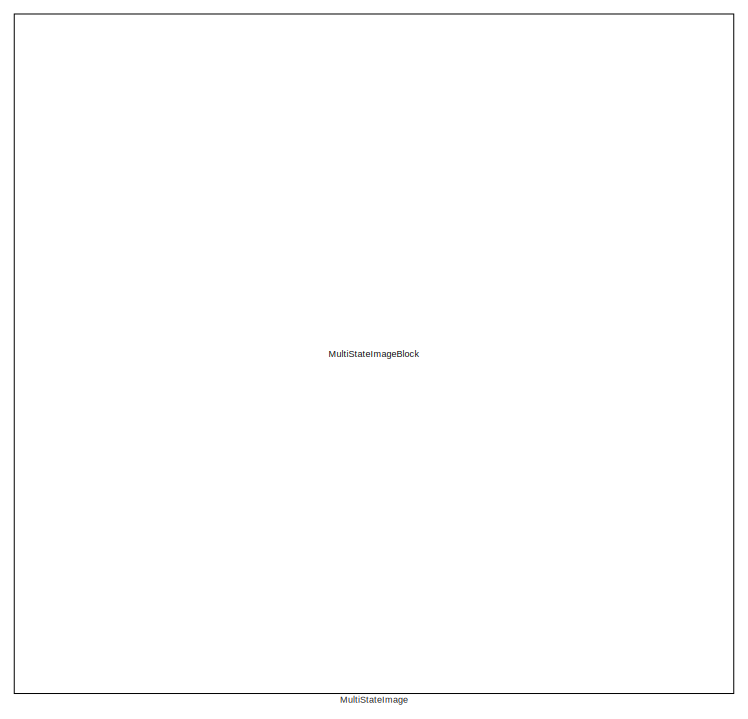
[diagram: root canvas - part 1/10, top center region]
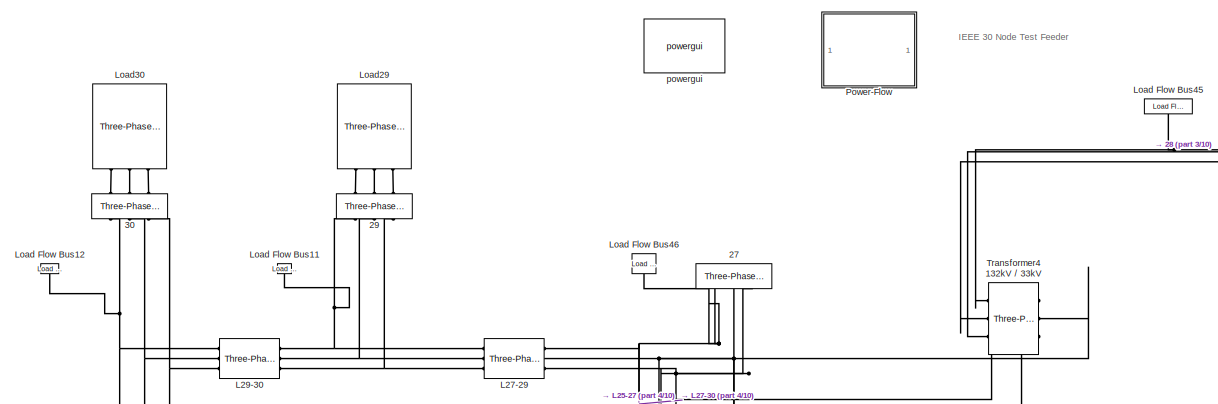
[diagram: root canvas - part 2/10, top center region]
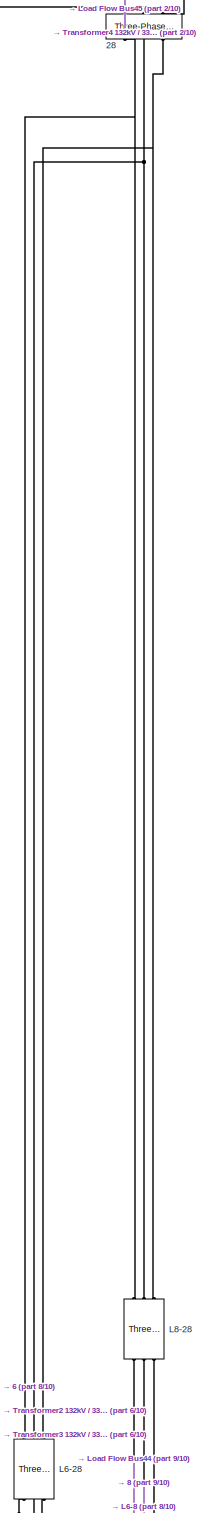
[diagram: root canvas - part 3/10, middle right region]
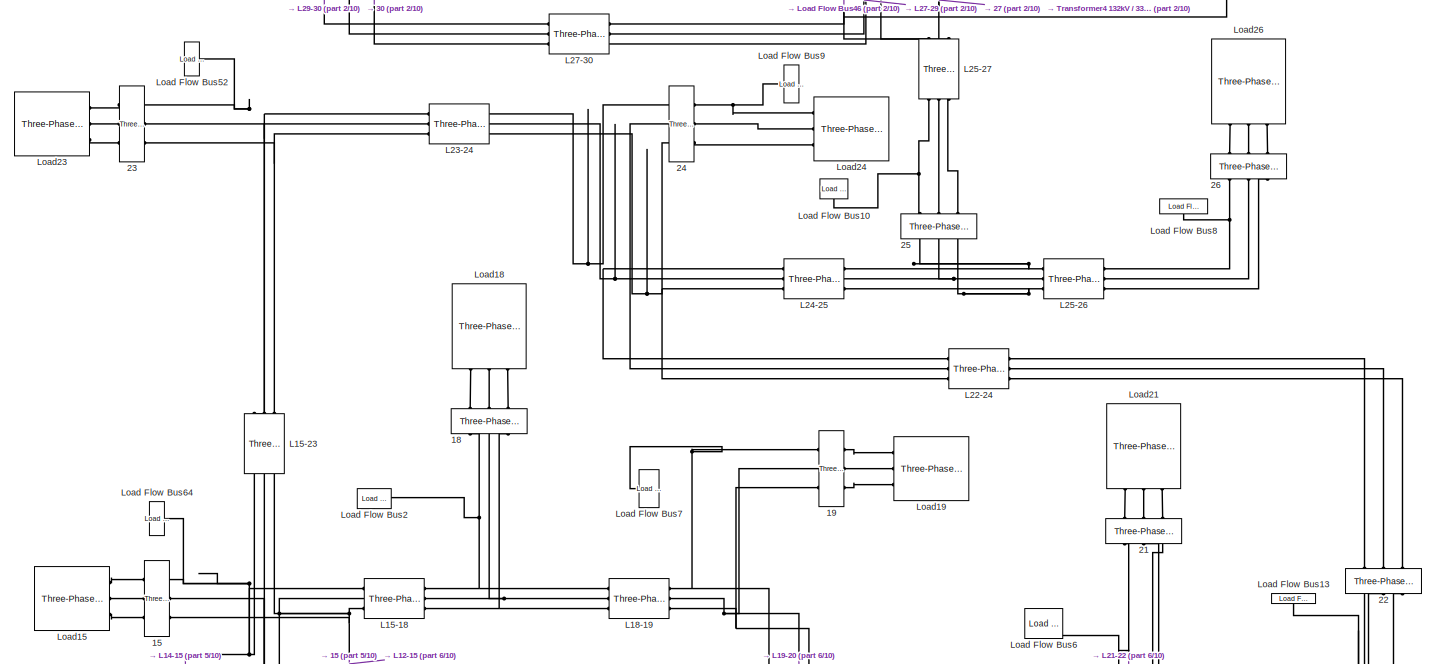
[diagram: root canvas - part 4/10, central region]
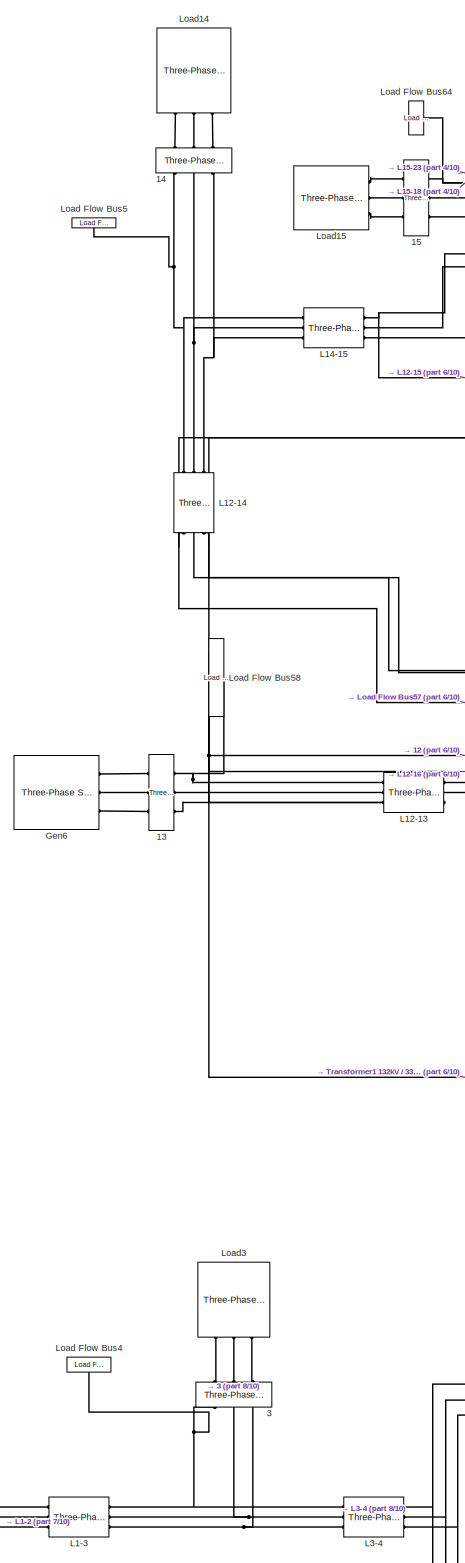
[diagram: root canvas - part 5/10, middle left region]
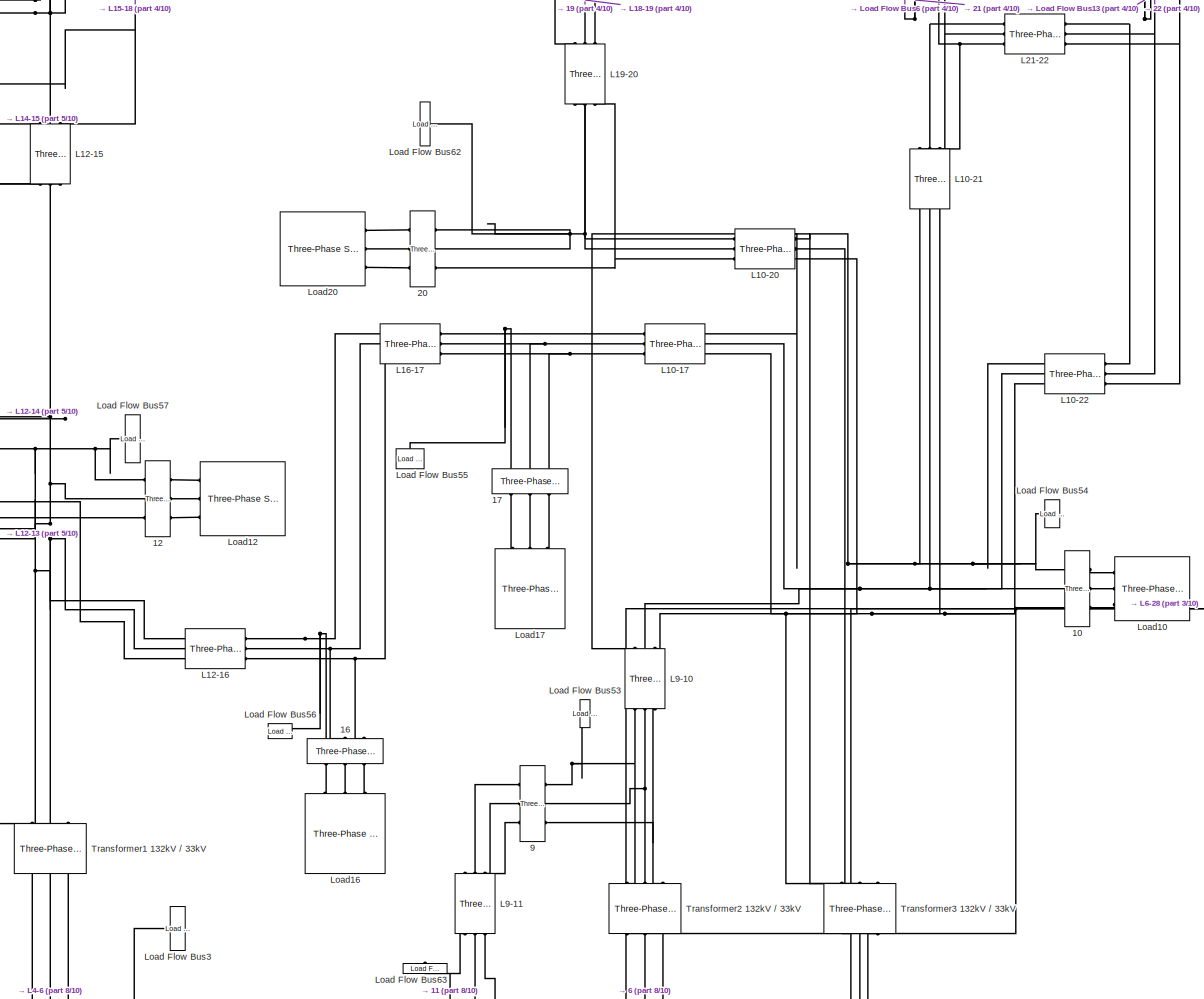
[diagram: root canvas - part 6/10, central region]
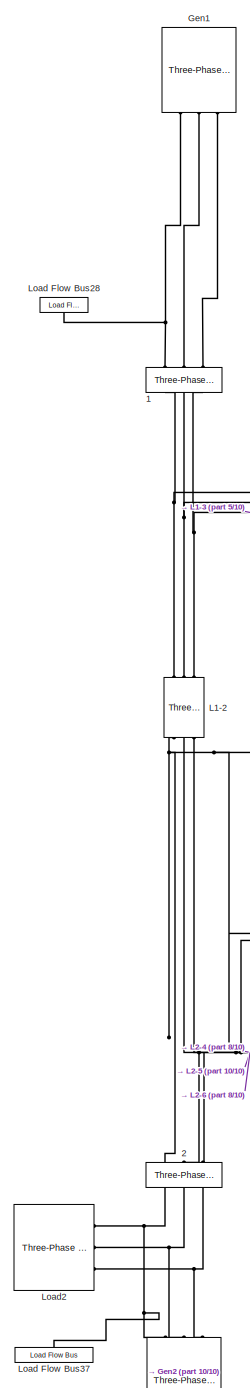
[diagram: root canvas - part 7/10, bottom left region]
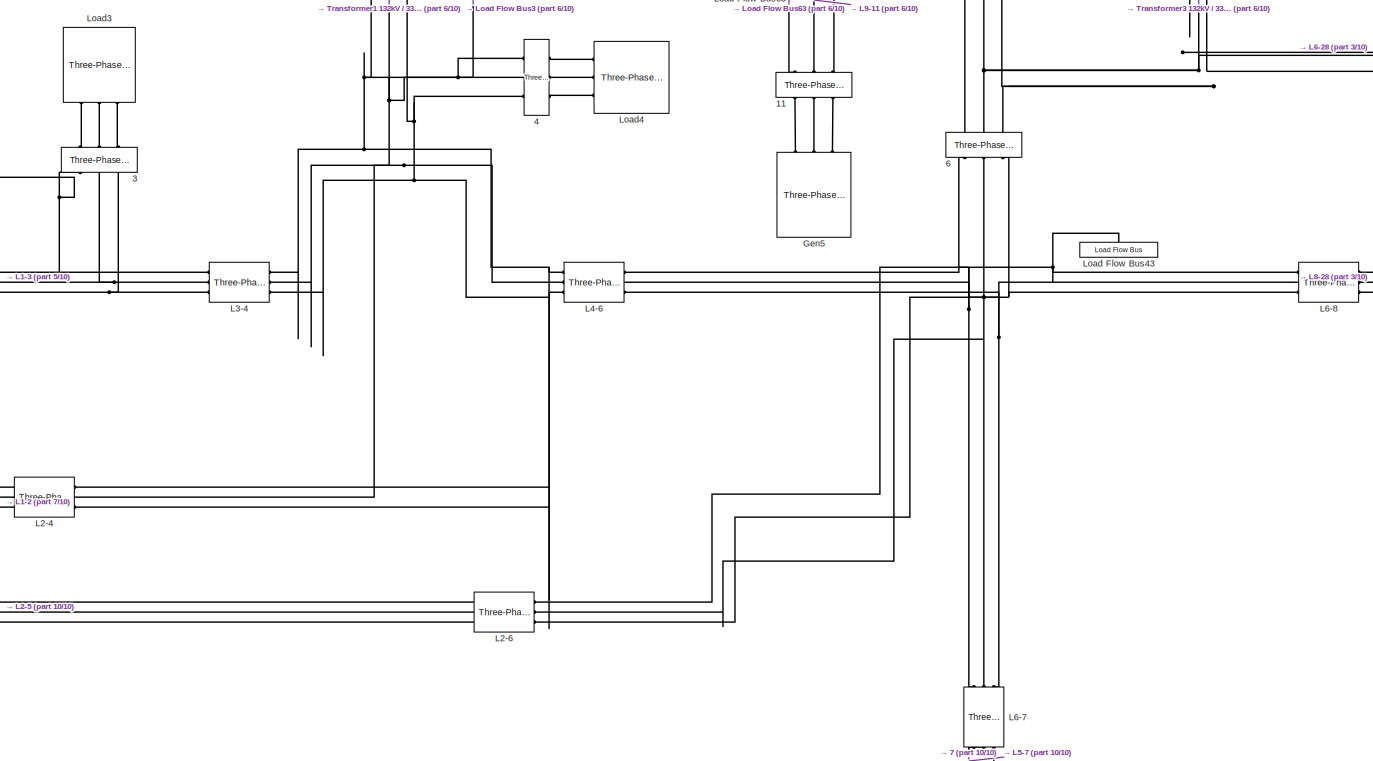
[diagram: root canvas - part 8/10, bottom center region]
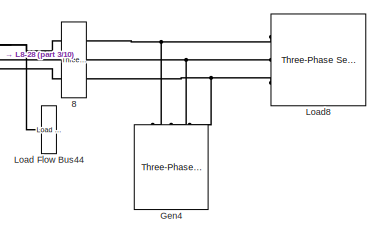
[diagram: root canvas - part 9/10, bottom right region]
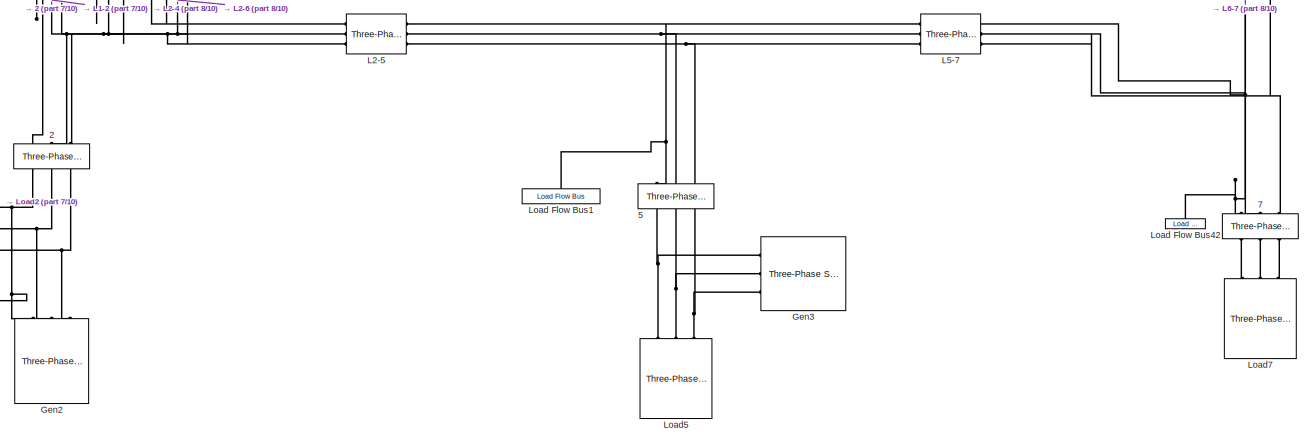
[diagram: root canvas - part 10/10, bottom left region]
MODEL slx_54e22e203c2f
KIND model
CONFIG AbsTol = auto
CONFIG EnableMultiTasking = off
CONFIG FixedStep = 50e-6
CONFIG MaxStep = auto
CONFIG MinStep = auto
CONFIG RelTol = 1e-3
CONFIG SampleTimeConstraint = Unconstrained
CONFIG SolverName = FixedStepDiscrete
CONFIG StartTime = 0.0
CONFIG StopTime = 0.5
BLOCK [Reference] 1  REF=spsThreePhaseVIMeasurementLib/Three-Phase
V-I Measurement
  NameLocation = right
  Ports = [0, 0, 0, 0, 0, 3, 3]
  SourceBlock = spsThreePhaseVIMeasurementLib/Three-Phase\nV-I Measurement
  SourceProductBaseCode = PS
  SourceType = Three-Phase VI Measurement
BLOCK [Reference] 10  REF=spsThreePhaseVIMeasurementLib/Three-Phase
V-I Measurement
  NameLocation = top
  Ports = [0, 0, 0, 0, 0, 3, 3]
  SourceBlock = spsThreePhaseVIMeasurementLib/Three-Phase\nV-I Measurement
  SourceProductBaseCode = PS
  SourceType = Three-Phase VI Measurement
BLOCK [Reference] 11  REF=spsThreePhaseVIMeasurementLib/Three-Phase
V-I Measurement
  NameLocation = left
  Ports = [0, 0, 0, 0, 0, 3, 3]
  SourceBlock = spsThreePhaseVIMeasurementLib/Three-Phase\nV-I Measurement
  SourceProductBaseCode = PS
  SourceType = Three-Phase VI Measurement
BLOCK [Reference] 12  REF=spsThreePhaseVIMeasurementLib/Three-Phase
V-I Measurement
  NameLocation = top
  Ports = [0, 0, 0, 0, 0, 3, 3]
  SourceBlock = spsThreePhaseVIMeasurementLib/Three-Phase\nV-I Measurement
  SourceProductBaseCode = PS
  SourceType = Three-Phase VI Measurement
BLOCK [Reference] 13  REF=spsThreePhaseVIMeasurementLib/Three-Phase
V-I Measurement
  NameLocation = top
  Ports = [0, 0, 0, 0, 0, 3, 3]
  SourceBlock = spsThreePhaseVIMeasurementLib/Three-Phase\nV-I Measurement
  SourceProductBaseCode = PS
  SourceType = Three-Phase VI Measurement
BLOCK [Reference] 14  REF=spsThreePhaseVIMeasurementLib/Three-Phase
V-I Measurement
  NameLocation = left
  Ports = [0, 0, 0, 0, 0, 3, 3]
  SourceBlock = spsThreePhaseVIMeasurementLib/Three-Phase\nV-I Measurement
  SourceProductBaseCode = PS
  SourceType = Three-Phase VI Measurement
BLOCK [Reference] 15  REF=spsThreePhaseVIMeasurementLib/Three-Phase
V-I Measurement
  NameLocation = top
  Ports = [0, 0, 0, 0, 0, 3, 3]
  SourceBlock = spsThreePhaseVIMeasurementLib/Three-Phase\nV-I Measurement
  SourceProductBaseCode = PS
  SourceType = Three-Phase VI Measurement
BLOCK [Reference] 16  REF=spsThreePhaseVIMeasurementLib/Three-Phase
V-I Measurement
  NameLocation = left
  Ports = [0, 0, 0, 0, 0, 3, 3]
  SourceBlock = spsThreePhaseVIMeasurementLib/Three-Phase\nV-I Measurement
  SourceProductBaseCode = PS
  SourceType = Three-Phase VI Measurement
BLOCK [Reference] 17  REF=spsThreePhaseVIMeasurementLib/Three-Phase
V-I Measurement
  NameLocation = left
  Ports = [0, 0, 0, 0, 0, 3, 3]
  SourceBlock = spsThreePhaseVIMeasurementLib/Three-Phase\nV-I Measurement
  SourceProductBaseCode = PS
  SourceType = Three-Phase VI Measurement
BLOCK [Reference] 18  REF=spsThreePhaseVIMeasurementLib/Three-Phase
V-I Measurement
  NameLocation = left
  Ports = [0, 0, 0, 0, 0, 3, 3]
  SourceBlock = spsThreePhaseVIMeasurementLib/Three-Phase\nV-I Measurement
  SourceProductBaseCode = PS
  SourceType = Three-Phase VI Measurement
BLOCK [Reference] 19  REF=spsThreePhaseVIMeasurementLib/Three-Phase
V-I Measurement
  NameLocation = top
  Ports = [0, 0, 0, 0, 0, 3, 3]
  SourceBlock = spsThreePhaseVIMeasurementLib/Three-Phase\nV-I Measurement
  SourceProductBaseCode = PS
  SourceType = Three-Phase VI Measurement
BLOCK [Reference] 2  REF=spsThreePhaseVIMeasurementLib/Three-Phase
V-I Measurement
  NameLocation = left
  Ports = [0, 0, 0, 0, 0, 3, 3]
  SourceBlock = spsThreePhaseVIMeasurementLib/Three-Phase\nV-I Measurement
  SourceProductBaseCode = PS
  SourceType = Three-Phase VI Measurement
BLOCK [Reference] 20  REF=spsThreePhaseVIMeasurementLib/Three-Phase
V-I Measurement
  NameLocation = top
  Ports = [0, 0, 0, 0, 0, 3, 3]
  SourceBlock = spsThreePhaseVIMeasurementLib/Three-Phase\nV-I Measurement
  SourceProductBaseCode = PS
  SourceType = Three-Phase VI Measurement
BLOCK [Reference] 21  REF=spsThreePhaseVIMeasurementLib/Three-Phase
V-I Measurement
  NameLocation = left
  Ports = [0, 0, 0, 0, 0, 3, 3]
  SourceBlock = spsThreePhaseVIMeasurementLib/Three-Phase\nV-I Measurement
  SourceProductBaseCode = PS
  SourceType = Three-Phase VI Measurement
BLOCK [Reference] 22  REF=spsThreePhaseVIMeasurementLib/Three-Phase
V-I Measurement
  NameLocation = left
  Ports = [0, 0, 0, 0, 0, 3, 3]
  SourceBlock = spsThreePhaseVIMeasurementLib/Three-Phase\nV-I Measurement
  SourceProductBaseCode = PS
  SourceType = Three-Phase VI Measurement
BLOCK [Reference] 23  REF=spsThreePhaseVIMeasurementLib/Three-Phase
V-I Measurement
  NameLocation = top
  Ports = [0, 0, 0, 0, 0, 3, 3]
  SourceBlock = spsThreePhaseVIMeasurementLib/Three-Phase\nV-I Measurement
  SourceProductBaseCode = PS
  SourceType = Three-Phase VI Measurement
BLOCK [Reference] 24  REF=spsThreePhaseVIMeasurementLib/Three-Phase
V-I Measurement
  NameLocation = top
  Ports = [0, 0, 0, 0, 0, 3, 3]
  SourceBlock = spsThreePhaseVIMeasurementLib/Three-Phase\nV-I Measurement
  SourceProductBaseCode = PS
  SourceType = Three-Phase VI Measurement
BLOCK [Reference] 25  REF=spsThreePhaseVIMeasurementLib/Three-Phase
V-I Measurement
  NameLocation = left
  Ports = [0, 0, 0, 0, 0, 3, 3]
  SourceBlock = spsThreePhaseVIMeasurementLib/Three-Phase\nV-I Measurement
  SourceProductBaseCode = PS
  SourceType = Three-Phase VI Measurement
BLOCK [Reference] 26  REF=spsThreePhaseVIMeasurementLib/Three-Phase
V-I Measurement
  NameLocation = left
  Ports = [0, 0, 0, 0, 0, 3, 3]
  SourceBlock = spsThreePhaseVIMeasurementLib/Three-Phase\nV-I Measurement
  SourceProductBaseCode = PS
  SourceType = Three-Phase VI Measurement
BLOCK [Reference] 27  REF=spsThreePhaseVIMeasurementLib/Three-Phase
V-I Measurement
  NameLocation = left
  Ports = [0, 0, 0, 0, 0, 3, 3]
  SourceBlock = spsThreePhaseVIMeasurementLib/Three-Phase\nV-I Measurement
  SourceProductBaseCode = PS
  SourceType = Three-Phase VI Measurement
BLOCK [Reference] 28  REF=spsThreePhaseVIMeasurementLib/Three-Phase
V-I Measurement
  NameLocation = left
  Ports = [0, 0, 0, 0, 0, 3, 3]
  SourceBlock = spsThreePhaseVIMeasurementLib/Three-Phase\nV-I Measurement
  SourceProductBaseCode = PS
  SourceType = Three-Phase VI Measurement
BLOCK [Reference] 29  REF=spsThreePhaseVIMeasurementLib/Three-Phase
V-I Measurement
  NameLocation = left
  Ports = [0, 0, 0, 0, 0, 3, 3]
  SourceBlock = spsThreePhaseVIMeasurementLib/Three-Phase\nV-I Measurement
  SourceProductBaseCode = PS
  SourceType = Three-Phase VI Measurement
BLOCK [Reference] 3  REF=spsThreePhaseVIMeasurementLib/Three-Phase
V-I Measurement
  NameLocation = left
  Ports = [0, 0, 0, 0, 0, 3, 3]
  SourceBlock = spsThreePhaseVIMeasurementLib/Three-Phase\nV-I Measurement
  SourceProductBaseCode = PS
  SourceType = Three-Phase VI Measurement
BLOCK [Reference] 30  REF=spsThreePhaseVIMeasurementLib/Three-Phase
V-I Measurement
  NameLocation = left
  Ports = [0, 0, 0, 0, 0, 3, 3]
  SourceBlock = spsThreePhaseVIMeasurementLib/Three-Phase\nV-I Measurement
  SourceProductBaseCode = PS
  SourceType = Three-Phase VI Measurement
BLOCK [Reference] 4  REF=spsThreePhaseVIMeasurementLib/Three-Phase
V-I Measurement
  NameLocation = top
  Ports = [0, 0, 0, 0, 0, 3, 3]
  SourceBlock = spsThreePhaseVIMeasurementLib/Three-Phase\nV-I Measurement
  SourceProductBaseCode = PS
  SourceType = Three-Phase VI Measurement
BLOCK [Reference] 5  REF=spsThreePhaseVIMeasurementLib/Three-Phase
V-I Measurement
  NameLocation = left
  Ports = [0, 0, 0, 0, 0, 3, 3]
  SourceBlock = spsThreePhaseVIMeasurementLib/Three-Phase\nV-I Measurement
  SourceProductBaseCode = PS
  SourceType = Three-Phase VI Measurement
BLOCK [Reference] 6  REF=spsThreePhaseVIMeasurementLib/Three-Phase
V-I Measurement
  NameLocation = left
  Ports = [0, 0, 0, 0, 0, 3, 3]
  SourceBlock = spsThreePhaseVIMeasurementLib/Three-Phase\nV-I Measurement
  SourceProductBaseCode = PS
  SourceType = Three-Phase VI Measurement
BLOCK [Reference] 7  REF=spsThreePhaseVIMeasurementLib/Three-Phase
V-I Measurement
  NameLocation = left
  Ports = [0, 0, 0, 0, 0, 3, 3]
  SourceBlock = spsThreePhaseVIMeasurementLib/Three-Phase\nV-I Measurement
  SourceProductBaseCode = PS
  SourceType = Three-Phase VI Measurement
BLOCK [Reference] 8  REF=spsThreePhaseVIMeasurementLib/Three-Phase
V-I Measurement
  NameLocation = top
  Ports = [0, 0, 0, 0, 0, 3, 3]
  SourceBlock = spsThreePhaseVIMeasurementLib/Three-Phase\nV-I Measurement
  SourceProductBaseCode = PS
  SourceType = Three-Phase VI Measurement
BLOCK [Reference] 9  REF=spsThreePhaseVIMeasurementLib/Three-Phase
V-I Measurement
  NameLocation = top
  Ports = [0, 0, 0, 0, 0, 3, 3]
  SourceBlock = spsThreePhaseVIMeasurementLib/Three-Phase\nV-I Measurement
  SourceProductBaseCode = PS
  SourceType = Three-Phase VI Measurement
BLOCK [Reference] Gen1  REF=spsThreePhaseSourceLib/Three-Phase Source
  NameLocation = left
  Ports = [0, 0, 0, 0, 0, 0, 3]
  SourceBlock = spsThreePhaseSourceLib/Three-Phase Source
  SourceProductBaseCode = PS
  SourceType = Three-Phase Source
BLOCK [Reference] Gen2  REF=spsThreePhaseSourceLib/Three-Phase Source
  NameLocation = right
  Ports = [0, 0, 0, 0, 0, 0, 3]
  SourceBlock = spsThreePhaseSourceLib/Three-Phase Source
  SourceProductBaseCode = PS
  SourceType = Three-Phase Source
BLOCK [Reference] Gen3  REF=spsThreePhaseSourceLib/Three-Phase Source
  NameLocation = top
  Ports = [0, 0, 0, 0, 0, 0, 3]
  SourceBlock = spsThreePhaseSourceLib/Three-Phase Source
  SourceProductBaseCode = PS
  SourceType = Three-Phase Source
BLOCK [Reference] Gen4  REF=spsThreePhaseSourceLib/Three-Phase Source
  NameLocation = right
  Ports = [0, 0, 0, 0, 0, 0, 3]
  SourceBlock = spsThreePhaseSourceLib/Three-Phase Source
  SourceProductBaseCode = PS
  SourceType = Three-Phase Source
BLOCK [Reference] Gen5  REF=spsThreePhaseSourceLib/Three-Phase Source
  NameLocation = right
  Ports = [0, 0, 0, 0, 0, 0, 3]
  SourceBlock = spsThreePhaseSourceLib/Three-Phase Source
  SourceProductBaseCode = PS
  SourceType = Three-Phase Source
BLOCK [Reference] Gen6  REF=spsThreePhaseSourceLib/Three-Phase Source
  Ports = [0, 0, 0, 0, 0, 0, 3]
  SourceBlock = spsThreePhaseSourceLib/Three-Phase Source
  SourceProductBaseCode = PS
  SourceType = Three-Phase Source
BLOCK [Reference] L1-2  REF=spsThreePhasePISectionLineLib/Three-Phase
PI Section Line
  AttributesFormatString = \n
  NameLocation = right
  Ports = [0, 0, 0, 0, 0, 3, 3]
  SourceBlock = spsThreePhasePISectionLineLib/Three-Phase\nPI Section Line
  SourceProductBaseCode = PS
  SourceType = Three-Phase PI Section Line
BLOCK [Reference] L1-3  REF=spsThreePhasePISectionLineLib/Three-Phase
PI Section Line
  AttributesFormatString = \n
  Ports = [0, 0, 0, 0, 0, 3, 3]
  SourceBlock = spsThreePhasePISectionLineLib/Three-Phase\nPI Section Line
  SourceProductBaseCode = PS
  SourceType = Three-Phase PI Section Line
BLOCK [Reference] L10-17  REF=spsThreePhasePISectionLineLib/Three-Phase
PI Section Line
  AttributesFormatString = \n
  Ports = [0, 0, 0, 0, 0, 3, 3]
  SourceBlock = spsThreePhasePISectionLineLib/Three-Phase\nPI Section Line
  SourceProductBaseCode = PS
  SourceType = Three-Phase PI Section Line
BLOCK [Reference] L10-20  REF=spsThreePhasePISectionLineLib/Three-Phase
PI Section Line
  AttributesFormatString = \n
  Ports = [0, 0, 0, 0, 0, 3, 3]
  SourceBlock = spsThreePhasePISectionLineLib/Three-Phase\nPI Section Line
  SourceProductBaseCode = PS
  SourceType = Three-Phase PI Section Line
BLOCK [Reference] L10-21  REF=spsThreePhasePISectionLineLib/Three-Phase
PI Section Line
  AttributesFormatString = \n
  NameLocation = right
  Ports = [0, 0, 0, 0, 0, 3, 3]
  SourceBlock = spsThreePhasePISectionLineLib/Three-Phase\nPI Section Line
  SourceProductBaseCode = PS
  SourceType = Three-Phase PI Section Line
BLOCK [Reference] L10-22  REF=spsThreePhasePISectionLineLib/Three-Phase
PI Section Line
  AttributesFormatString = \n
  Ports = [0, 0, 0, 0, 0, 3, 3]
  SourceBlock = spsThreePhasePISectionLineLib/Three-Phase\nPI Section Line
  SourceProductBaseCode = PS
  SourceType = Three-Phase PI Section Line
BLOCK [Reference] L12-13  REF=spsThreePhasePISectionLineLib/Three-Phase
PI Section Line
  AttributesFormatString = \n
  Ports = [0, 0, 0, 0, 0, 3, 3]
  SourceBlock = spsThreePhasePISectionLineLib/Three-Phase\nPI Section Line
  SourceProductBaseCode = PS
  SourceType = Three-Phase PI Section Line
BLOCK [Reference] L12-14  REF=spsThreePhasePISectionLineLib/Three-Phase
PI Section Line
  AttributesFormatString = \n
  NameLocation = right
  Ports = [0, 0, 0, 0, 0, 3, 3]
  SourceBlock = spsThreePhasePISectionLineLib/Three-Phase\nPI Section Line
  SourceProductBaseCode = PS
  SourceType = Three-Phase PI Section Line
BLOCK [Reference] L12-15  REF=spsThreePhasePISectionLineLib/Three-Phase
PI Section Line
  AttributesFormatString = \n
  NameLocation = right
  Ports = [0, 0, 0, 0, 0, 3, 3]
  SourceBlock = spsThreePhasePISectionLineLib/Three-Phase\nPI Section Line
  SourceProductBaseCode = PS
  SourceType = Three-Phase PI Section Line
BLOCK [Reference] L12-16  REF=spsThreePhasePISectionLineLib/Three-Phase
PI Section Line
  AttributesFormatString = \n
  Ports = [0, 0, 0, 0, 0, 3, 3]
  SourceBlock = spsThreePhasePISectionLineLib/Three-Phase\nPI Section Line
  SourceProductBaseCode = PS
  SourceType = Three-Phase PI Section Line
BLOCK [Reference] L14-15  REF=spsThreePhasePISectionLineLib/Three-Phase
PI Section Line
  AttributesFormatString = \n
  Ports = [0, 0, 0, 0, 0, 3, 3]
  SourceBlock = spsThreePhasePISectionLineLib/Three-Phase\nPI Section Line
  SourceProductBaseCode = PS
  SourceType = Three-Phase PI Section Line
BLOCK [Reference] L15-18  REF=spsThreePhasePISectionLineLib/Three-Phase
PI Section Line
  AttributesFormatString = \n
  Ports = [0, 0, 0, 0, 0, 3, 3]
  SourceBlock = spsThreePhasePISectionLineLib/Three-Phase\nPI Section Line
  SourceProductBaseCode = PS
  SourceType = Three-Phase PI Section Line
BLOCK [Reference] L15-23  REF=spsThreePhasePISectionLineLib/Three-Phase
PI Section Line
  AttributesFormatString = \n
  NameLocation = right
  Ports = [0, 0, 0, 0, 0, 3, 3]
  SourceBlock = spsThreePhasePISectionLineLib/Three-Phase\nPI Section Line
  SourceProductBaseCode = PS
  SourceType = Three-Phase PI Section Line
BLOCK [Reference] L16-17  REF=spsThreePhasePISectionLineLib/Three-Phase
PI Section Line
  AttributesFormatString = \n
  Ports = [0, 0, 0, 0, 0, 3, 3]
  SourceBlock = spsThreePhasePISectionLineLib/Three-Phase\nPI Section Line
  SourceProductBaseCode = PS
  SourceType = Three-Phase PI Section Line
BLOCK [Reference] L18-19  REF=spsThreePhasePISectionLineLib/Three-Phase
PI Section Line
  AttributesFormatString = \n
  Ports = [0, 0, 0, 0, 0, 3, 3]
  SourceBlock = spsThreePhasePISectionLineLib/Three-Phase\nPI Section Line
  SourceProductBaseCode = PS
  SourceType = Three-Phase PI Section Line
BLOCK [Reference] L19-20  REF=spsThreePhasePISectionLineLib/Three-Phase
PI Section Line
  AttributesFormatString = \n
  NameLocation = right
  Ports = [0, 0, 0, 0, 0, 3, 3]
  SourceBlock = spsThreePhasePISectionLineLib/Three-Phase\nPI Section Line
  SourceProductBaseCode = PS
  SourceType = Three-Phase PI Section Line
BLOCK [Reference] L2-4  REF=spsThreePhasePISectionLineLib/Three-Phase
PI Section Line
  AttributesFormatString = \n
  Ports = [0, 0, 0, 0, 0, 3, 3]
  SourceBlock = spsThreePhasePISectionLineLib/Three-Phase\nPI Section Line
  SourceProductBaseCode = PS
  SourceType = Three-Phase PI Section Line
BLOCK [Reference] L2-5  REF=spsThreePhasePISectionLineLib/Three-Phase
PI Section Line
  AttributesFormatString = \n
  Ports = [0, 0, 0, 0, 0, 3, 3]
  SourceBlock = spsThreePhasePISectionLineLib/Three-Phase\nPI Section Line
  SourceProductBaseCode = PS
  SourceType = Three-Phase PI Section Line
BLOCK [Reference] L2-6  REF=spsThreePhasePISectionLineLib/Three-Phase
PI Section Line
  AttributesFormatString = \n
  Ports = [0, 0, 0, 0, 0, 3, 3]
  SourceBlock = spsThreePhasePISectionLineLib/Three-Phase\nPI Section Line
  SourceProductBaseCode = PS
  SourceType = Three-Phase PI Section Line
BLOCK [Reference] L21-22  REF=spsThreePhasePISectionLineLib/Three-Phase
PI Section Line
  AttributesFormatString = \n
  Ports = [0, 0, 0, 0, 0, 3, 3]
  SourceBlock = spsThreePhasePISectionLineLib/Three-Phase\nPI Section Line
  SourceProductBaseCode = PS
  SourceType = Three-Phase PI Section Line
BLOCK [Reference] L22-24  REF=spsThreePhasePISectionLineLib/Three-Phase
PI Section Line
  AttributesFormatString = \n
  Ports = [0, 0, 0, 0, 0, 3, 3]
  SourceBlock = spsThreePhasePISectionLineLib/Three-Phase\nPI Section Line
  SourceProductBaseCode = PS
  SourceType = Three-Phase PI Section Line
BLOCK [Reference] L23-24  REF=spsThreePhasePISectionLineLib/Three-Phase
PI Section Line
  AttributesFormatString = \n
  Ports = [0, 0, 0, 0, 0, 3, 3]
  SourceBlock = spsThreePhasePISectionLineLib/Three-Phase\nPI Section Line
  SourceProductBaseCode = PS
  SourceType = Three-Phase PI Section Line
BLOCK [Reference] L24-25  REF=spsThreePhasePISectionLineLib/Three-Phase
PI Section Line
  AttributesFormatString = \n
  Ports = [0, 0, 0, 0, 0, 3, 3]
  SourceBlock = spsThreePhasePISectionLineLib/Three-Phase\nPI Section Line
  SourceProductBaseCode = PS
  SourceType = Three-Phase PI Section Line
BLOCK [Reference] L25-26  REF=spsThreePhasePISectionLineLib/Three-Phase
PI Section Line
  AttributesFormatString = \n
  Ports = [0, 0, 0, 0, 0, 3, 3]
  SourceBlock = spsThreePhasePISectionLineLib/Three-Phase\nPI Section Line
  SourceProductBaseCode = PS
  SourceType = Three-Phase PI Section Line
BLOCK [Reference] L25-27  REF=spsThreePhasePISectionLineLib/Three-Phase
PI Section Line
  AttributesFormatString = \n
  NameLocation = right
  Ports = [0, 0, 0, 0, 0, 3, 3]
  SourceBlock = spsThreePhasePISectionLineLib/Three-Phase\nPI Section Line
  SourceProductBaseCode = PS
  SourceType = Three-Phase PI Section Line
BLOCK [Reference] L27-29  REF=spsThreePhasePISectionLineLib/Three-Phase
PI Section Line
  AttributesFormatString = \n
  Ports = [0, 0, 0, 0, 0, 3, 3]
  SourceBlock = spsThreePhasePISectionLineLib/Three-Phase\nPI Section Line
  SourceProductBaseCode = PS
  SourceType = Three-Phase PI Section Line
BLOCK [Reference] L27-30  REF=spsThreePhasePISectionLineLib/Three-Phase
PI Section Line
  AttributesFormatString = \n
  Ports = [0, 0, 0, 0, 0, 3, 3]
  SourceBlock = spsThreePhasePISectionLineLib/Three-Phase\nPI Section Line
  SourceProductBaseCode = PS
  SourceType = Three-Phase PI Section Line
BLOCK [Reference] L29-30  REF=spsThreePhasePISectionLineLib/Three-Phase
PI Section Line
  AttributesFormatString = \n
  Ports = [0, 0, 0, 0, 0, 3, 3]
  SourceBlock = spsThreePhasePISectionLineLib/Three-Phase\nPI Section Line
  SourceProductBaseCode = PS
  SourceType = Three-Phase PI Section Line
BLOCK [Reference] L3-4  REF=spsThreePhasePISectionLineLib/Three-Phase
PI Section Line
  AttributesFormatString = \n
  Ports = [0, 0, 0, 0, 0, 3, 3]
  SourceBlock = spsThreePhasePISectionLineLib/Three-Phase\nPI Section Line
  SourceProductBaseCode = PS
  SourceType = Three-Phase PI Section Line
BLOCK [Reference] L4-6  REF=spsThreePhasePISectionLineLib/Three-Phase
PI Section Line
  AttributesFormatString = \n
  Ports = [0, 0, 0, 0, 0, 3, 3]
  SourceBlock = spsThreePhasePISectionLineLib/Three-Phase\nPI Section Line
  SourceProductBaseCode = PS
  SourceType = Three-Phase PI Section Line
BLOCK [Reference] L5-7  REF=spsThreePhasePISectionLineLib/Three-Phase
PI Section Line
  AttributesFormatString = \n
  Ports = [0, 0, 0, 0, 0, 3, 3]
  SourceBlock = spsThreePhasePISectionLineLib/Three-Phase\nPI Section Line
  SourceProductBaseCode = PS
  SourceType = Three-Phase PI Section Line
BLOCK [Reference] L6-28  REF=spsThreePhasePISectionLineLib/Three-Phase
PI Section Line
  AttributesFormatString = \n
  NameLocation = right
  Ports = [0, 0, 0, 0, 0, 3, 3]
  SourceBlock = spsThreePhasePISectionLineLib/Three-Phase\nPI Section Line
  SourceProductBaseCode = PS
  SourceType = Three-Phase PI Section Line
BLOCK [Reference] L6-7  REF=spsThreePhasePISectionLineLib/Three-Phase
PI Section Line
  AttributesFormatString = \n
  NameLocation = right
  Ports = [0, 0, 0, 0, 0, 3, 3]
  SourceBlock = spsThreePhasePISectionLineLib/Three-Phase\nPI Section Line
  SourceProductBaseCode = PS
  SourceType = Three-Phase PI Section Line
BLOCK [Reference] L6-8  REF=spsThreePhasePISectionLineLib/Three-Phase
PI Section Line
  AttributesFormatString = \n
  Ports = [0, 0, 0, 0, 0, 3, 3]
  SourceBlock = spsThreePhasePISectionLineLib/Three-Phase\nPI Section Line
  SourceProductBaseCode = PS
  SourceType = Three-Phase PI Section Line
BLOCK [Reference] L8-28  REF=spsThreePhasePISectionLineLib/Three-Phase
PI Section Line
  AttributesFormatString = \n
  NameLocation = right
  Ports = [0, 0, 0, 0, 0, 3, 3]
  SourceBlock = spsThreePhasePISectionLineLib/Three-Phase\nPI Section Line
  SourceProductBaseCode = PS
  SourceType = Three-Phase PI Section Line
BLOCK [Reference] L9-10  REF=spsThreePhasePISectionLineLib/Three-Phase
PI Section Line
  AttributesFormatString = \n
  NameLocation = right
  Ports = [0, 0, 0, 0, 0, 3, 3]
  SourceBlock = spsThreePhasePISectionLineLib/Three-Phase\nPI Section Line
  SourceProductBaseCode = PS
  SourceType = Three-Phase PI Section Line
BLOCK [Reference] L9-11  REF=spsThreePhasePISectionLineLib/Three-Phase
PI Section Line
  AttributesFormatString = \n
  NameLocation = right
  Ports = [0, 0, 0, 0, 0, 3, 3]
  SourceBlock = spsThreePhasePISectionLineLib/Three-Phase\nPI Section Line
  SourceProductBaseCode = PS
  SourceType = Three-Phase PI Section Line
BLOCK [Reference] Load Flow Bus1  REF=spsLoadFlowBusLib/Load Flow Bus
  AttributesFormatString = %<ID>
  NameLocation = left
  Ports = [0, 0, 0, 0, 0, 1]
  SourceBlock = spsLoadFlowBusLib/Load Flow Bus
  SourceProductBaseCode = PS
  SourceType = Load Flow Bus
BLOCK [Reference] Load Flow Bus10  REF=spsLoadFlowBusLib/Load Flow Bus
  AttributesFormatString = %<ID>
  NameLocation = right
  Ports = [0, 0, 0, 0, 0, 1]
  SourceBlock = spsLoadFlowBusLib/Load Flow Bus
  SourceProductBaseCode = PS
  SourceType = Load Flow Bus
BLOCK [Reference] Load Flow Bus11  REF=spsLoadFlowBusLib/Load Flow Bus
  AttributesFormatString = %<ID>
  NameLocation = right
  Ports = [0, 0, 0, 0, 0, 1]
  SourceBlock = spsLoadFlowBusLib/Load Flow Bus
  SourceProductBaseCode = PS
  SourceType = Load Flow Bus
BLOCK [Reference] Load Flow Bus12  REF=spsLoadFlowBusLib/Load Flow Bus
  AttributesFormatString = %<ID>
  NameLocation = right
  Ports = [0, 0, 0, 0, 0, 1]
  SourceBlock = spsLoadFlowBusLib/Load Flow Bus
  SourceProductBaseCode = PS
  SourceType = Load Flow Bus
BLOCK [Reference] Load Flow Bus13  REF=spsLoadFlowBusLib/Load Flow Bus
  AttributesFormatString = %<ID>
  NameLocation = right
  Ports = [0, 0, 0, 0, 0, 1]
  SourceBlock = spsLoadFlowBusLib/Load Flow Bus
  SourceProductBaseCode = PS
  SourceType = Load Flow Bus
BLOCK [Reference] Load Flow Bus2  REF=spsLoadFlowBusLib/Load Flow Bus
  AttributesFormatString = %<ID>
  NameLocation = right
  Ports = [0, 0, 0, 0, 0, 1]
  SourceBlock = spsLoadFlowBusLib/Load Flow Bus
  SourceProductBaseCode = PS
  SourceType = Load Flow Bus
BLOCK [Reference] Load Flow Bus28  REF=spsLoadFlowBusLib/Load Flow Bus
  AttributesFormatString = %<ID>
  NameLocation = right
  Ports = [0, 0, 0, 0, 0, 1]
  SourceBlock = spsLoadFlowBusLib/Load Flow Bus
  SourceProductBaseCode = PS
  SourceType = Load Flow Bus
BLOCK [Reference] Load Flow Bus3  REF=spsLoadFlowBusLib/Load Flow Bus
  AttributesFormatString = %<ID>
  Ports = [0, 0, 0, 0, 0, 1]
  SourceBlock = spsLoadFlowBusLib/Load Flow Bus
  SourceProductBaseCode = PS
  SourceType = Load Flow Bus
BLOCK [Reference] Load Flow Bus37  REF=spsLoadFlowBusLib/Load Flow Bus
  AttributesFormatString = %<ID>
  NameLocation = left
  Ports = [0, 0, 0, 0, 0, 1]
  SourceBlock = spsLoadFlowBusLib/Load Flow Bus
  SourceProductBaseCode = PS
  SourceType = Load Flow Bus
BLOCK [Reference] Load Flow Bus4  REF=spsLoadFlowBusLib/Load Flow Bus
  AttributesFormatString = %<ID>
  NameLocation = right
  Ports = [0, 0, 0, 0, 0, 1]
  SourceBlock = spsLoadFlowBusLib/Load Flow Bus
  SourceProductBaseCode = PS
  SourceType = Load Flow Bus
BLOCK [Reference] Load Flow Bus42  REF=spsLoadFlowBusLib/Load Flow Bus
  AttributesFormatString = %<ID>
  NameLocation = left
  Ports = [0, 0, 0, 0, 0, 1]
  SourceBlock = spsLoadFlowBusLib/Load Flow Bus
  SourceProductBaseCode = PS
  SourceType = Load Flow Bus
BLOCK [Reference] Load Flow Bus43  REF=spsLoadFlowBusLib/Load Flow Bus
  AttributesFormatString = %<ID>
  NameLocation = left
  Ports = [0, 0, 0, 0, 0, 1]
  SourceBlock = spsLoadFlowBusLib/Load Flow Bus
  SourceProductBaseCode = PS
  SourceType = Load Flow Bus
BLOCK [Reference] Load Flow Bus44  REF=spsLoadFlowBusLib/Load Flow Bus
  AttributesFormatString = %<ID>
  Ports = [0, 0, 0, 0, 0, 1]
  SourceBlock = spsLoadFlowBusLib/Load Flow Bus
  SourceProductBaseCode = PS
  SourceType = Load Flow Bus
BLOCK [Reference] Load Flow Bus45  REF=spsLoadFlowBusLib/Load Flow Bus
  AttributesFormatString = %<ID>
  NameLocation = right
  Ports = [0, 0, 0, 0, 0, 1]
  SourceBlock = spsLoadFlowBusLib/Load Flow Bus
  SourceProductBaseCode = PS
  SourceType = Load Flow Bus
BLOCK [Reference] Load Flow Bus46  REF=spsLoadFlowBusLib/Load Flow Bus
  AttributesFormatString = %<ID>
  NameLocation = right
  Ports = [0, 0, 0, 0, 0, 1]
  SourceBlock = spsLoadFlowBusLib/Load Flow Bus
  SourceProductBaseCode = PS
  SourceType = Load Flow Bus
BLOCK [Reference] Load Flow Bus5  REF=spsLoadFlowBusLib/Load Flow Bus
  AttributesFormatString = %<ID>
  NameLocation = right
  Ports = [0, 0, 0, 0, 0, 1]
  SourceBlock = spsLoadFlowBusLib/Load Flow Bus
  SourceProductBaseCode = PS
  SourceType = Load Flow Bus
BLOCK [Reference] Load Flow Bus52  REF=spsLoadFlowBusLib/Load Flow Bus
  AttributesFormatString = %<ID>
  NameLocation = top
  Ports = [0, 0, 0, 0, 0, 1]
  SourceBlock = spsLoadFlowBusLib/Load Flow Bus
  SourceProductBaseCode = PS
  SourceType = Load Flow Bus
BLOCK [Reference] Load Flow Bus53  REF=spsLoadFlowBusLib/Load Flow Bus
  AttributesFormatString = %<ID>
  Ports = [0, 0, 0, 0, 0, 1]
  SourceBlock = spsLoadFlowBusLib/Load Flow Bus
  SourceProductBaseCode = PS
  SourceType = Load Flow Bus
BLOCK [Reference] Load Flow Bus54  REF=spsLoadFlowBusLib/Load Flow Bus
  AttributesFormatString = %<ID>
  NameLocation = top
  Ports = [0, 0, 0, 0, 0, 1]
  SourceBlock = spsLoadFlowBusLib/Load Flow Bus
  SourceProductBaseCode = PS
  SourceType = Load Flow Bus
BLOCK [Reference] Load Flow Bus55  REF=spsLoadFlowBusLib/Load Flow Bus
  AttributesFormatString = %<ID>
  NameLocation = left
  Ports = [0, 0, 0, 0, 0, 1]
  SourceBlock = spsLoadFlowBusLib/Load Flow Bus
  SourceProductBaseCode = PS
  SourceType = Load Flow Bus
BLOCK [Reference] Load Flow Bus56  REF=spsLoadFlowBusLib/Load Flow Bus
  AttributesFormatString = %<ID>
  NameLocation = left
  Ports = [0, 0, 0, 0, 0, 1]
  SourceBlock = spsLoadFlowBusLib/Load Flow Bus
  SourceProductBaseCode = PS
  SourceType = Load Flow Bus
BLOCK [Reference] Load Flow Bus57  REF=spsLoadFlowBusLib/Load Flow Bus
  AttributesFormatString = %<ID>
  NameLocation = top
  Ports = [0, 0, 0, 0, 0, 1]
  SourceBlock = spsLoadFlowBusLib/Load Flow Bus
  SourceProductBaseCode = PS
  SourceType = Load Flow Bus
BLOCK [Reference] Load Flow Bus58  REF=spsLoadFlowBusLib/Load Flow Bus
  AttributesFormatString = %<ID>
  NameLocation = top
  Ports = [0, 0, 0, 0, 0, 1]
  SourceBlock = spsLoadFlowBusLib/Load Flow Bus
  SourceProductBaseCode = PS
  SourceType = Load Flow Bus
BLOCK [Reference] Load Flow Bus6  REF=spsLoadFlowBusLib/Load Flow Bus
  AttributesFormatString = %<ID>
  NameLocation = right
  Ports = [0, 0, 0, 0, 0, 1]
  SourceBlock = spsLoadFlowBusLib/Load Flow Bus
  SourceProductBaseCode = PS
  SourceType = Load Flow Bus
BLOCK [Reference] Load Flow Bus62  REF=spsLoadFlowBusLib/Load Flow Bus
  AttributesFormatString = %<ID>
  NameLocation = top
  Ports = [0, 0, 0, 0, 0, 1]
  SourceBlock = spsLoadFlowBusLib/Load Flow Bus
  SourceProductBaseCode = PS
  SourceType = Load Flow Bus
BLOCK [Reference] Load Flow Bus63  REF=spsLoadFlowBusLib/Load Flow Bus
  AttributesFormatString = %<ID>
  NameLocation = left
  Ports = [0, 0, 0, 0, 0, 1]
  SourceBlock = spsLoadFlowBusLib/Load Flow Bus
  SourceProductBaseCode = PS
  SourceType = Load Flow Bus
BLOCK [Reference] Load Flow Bus64  REF=spsLoadFlowBusLib/Load Flow Bus
  AttributesFormatString = %<ID>
  NameLocation = top
  Ports = [0, 0, 0, 0, 0, 1]
  SourceBlock = spsLoadFlowBusLib/Load Flow Bus
  SourceProductBaseCode = PS
  SourceType = Load Flow Bus
BLOCK [Reference] Load Flow Bus7  REF=spsLoadFlowBusLib/Load Flow Bus
  AttributesFormatString = %<ID>
  NameLocation = top
  Ports = [0, 0, 0, 0, 0, 1]
  SourceBlock = spsLoadFlowBusLib/Load Flow Bus
  SourceProductBaseCode = PS
  SourceType = Load Flow Bus
BLOCK [Reference] Load Flow Bus8  REF=spsLoadFlowBusLib/Load Flow Bus
  AttributesFormatString = %<ID>
  NameLocation = right
  Ports = [0, 0, 0, 0, 0, 1]
  SourceBlock = spsLoadFlowBusLib/Load Flow Bus
  SourceProductBaseCode = PS
  SourceType = Load Flow Bus
BLOCK [Reference] Load Flow Bus9  REF=spsLoadFlowBusLib/Load Flow Bus
  AttributesFormatString = %<ID>
  NameLocation = top
  Ports = [0, 0, 0, 0, 0, 1]
  SourceBlock = spsLoadFlowBusLib/Load Flow Bus
  SourceProductBaseCode = PS
  SourceType = Load Flow Bus
BLOCK [Reference] Load10  REF=spsThreePhaseSeriesRLCLoadLib/Three-Phase
Series RLC Load
  AttributesFormatString = \n
  NameLocation = top
  Ports = [0, 0, 0, 0, 0, 3]
  SourceBlock = spsThreePhaseSeriesRLCLoadLib/Three-Phase\nSeries RLC Load
  SourceProductBaseCode = PS
  SourceType = Three-Phase Series RLC Load
BLOCK [Reference] Load12  REF=spsThreePhaseSeriesRLCLoadLib/Three-Phase
Series RLC Load
  AttributesFormatString = \n
  NameLocation = top
  Ports = [0, 0, 0, 0, 0, 3]
  SourceBlock = spsThreePhaseSeriesRLCLoadLib/Three-Phase\nSeries RLC Load
  SourceProductBaseCode = PS
  SourceType = Three-Phase Series RLC Load
BLOCK [Reference] Load14  REF=spsThreePhaseSeriesRLCLoadLib/Three-Phase
Series RLC Load
  AttributesFormatString = \n
  NameLocation = left
  Ports = [0, 0, 0, 0, 0, 3]
  SourceBlock = spsThreePhaseSeriesRLCLoadLib/Three-Phase\nSeries RLC Load
  SourceProductBaseCode = PS
  SourceType = Three-Phase Series RLC Load
BLOCK [Reference] Load15  REF=spsThreePhaseSeriesRLCLoadLib/Three-Phase
Series RLC Load
  AttributesFormatString = \n
  Ports = [0, 0, 0, 0, 0, 3]
  SourceBlock = spsThreePhaseSeriesRLCLoadLib/Three-Phase\nSeries RLC Load
  SourceProductBaseCode = PS
  SourceType = Three-Phase Series RLC Load
BLOCK [Reference] Load16  REF=spsThreePhaseSeriesRLCLoadLib/Three-Phase
Series RLC Load
  AttributesFormatString = \n
  NameLocation = right
  Ports = [0, 0, 0, 0, 0, 3]
  SourceBlock = spsThreePhaseSeriesRLCLoadLib/Three-Phase\nSeries RLC Load
  SourceProductBaseCode = PS
  SourceType = Three-Phase Series RLC Load
BLOCK [Reference] Load17  REF=spsThreePhaseSeriesRLCLoadLib/Three-Phase
Series RLC Load
  AttributesFormatString = \n
  NameLocation = right
  Ports = [0, 0, 0, 0, 0, 3]
  SourceBlock = spsThreePhaseSeriesRLCLoadLib/Three-Phase\nSeries RLC Load
  SourceProductBaseCode = PS
  SourceType = Three-Phase Series RLC Load
BLOCK [Reference] Load18  REF=spsThreePhaseSeriesRLCLoadLib/Three-Phase
Series RLC Load
  AttributesFormatString = \n
  NameLocation = left
  Ports = [0, 0, 0, 0, 0, 3]
  SourceBlock = spsThreePhaseSeriesRLCLoadLib/Three-Phase\nSeries RLC Load
  SourceProductBaseCode = PS
  SourceType = Three-Phase Series RLC Load
BLOCK [Reference] Load19  REF=spsThreePhaseSeriesRLCLoadLib/Three-Phase
Series RLC Load
  AttributesFormatString = \n
  NameLocation = top
  Ports = [0, 0, 0, 0, 0, 3]
  SourceBlock = spsThreePhaseSeriesRLCLoadLib/Three-Phase\nSeries RLC Load
  SourceProductBaseCode = PS
  SourceType = Three-Phase Series RLC Load
BLOCK [Reference] Load2  REF=spsThreePhaseSeriesRLCLoadLib/Three-Phase
Series RLC Load
  AttributesFormatString = \n
  Ports = [0, 0, 0, 0, 0, 3]
  SourceBlock = spsThreePhaseSeriesRLCLoadLib/Three-Phase\nSeries RLC Load
  SourceProductBaseCode = PS
  SourceType = Three-Phase Series RLC Load
BLOCK [Reference] Load20  REF=spsThreePhaseSeriesRLCLoadLib/Three-Phase
Series RLC Load
  AttributesFormatString = \n
  Ports = [0, 0, 0, 0, 0, 3]
  SourceBlock = spsThreePhaseSeriesRLCLoadLib/Three-Phase\nSeries RLC Load
  SourceProductBaseCode = PS
  SourceType = Three-Phase Series RLC Load
BLOCK [Reference] Load21  REF=spsThreePhaseSeriesRLCLoadLib/Three-Phase
Series RLC Load
  AttributesFormatString = \n
  NameLocation = left
  Ports = [0, 0, 0, 0, 0, 3]
  SourceBlock = spsThreePhaseSeriesRLCLoadLib/Three-Phase\nSeries RLC Load
  SourceProductBaseCode = PS
  SourceType = Three-Phase Series RLC Load
BLOCK [Reference] Load23  REF=spsThreePhaseSeriesRLCLoadLib/Three-Phase
Series RLC Load
  AttributesFormatString = \n
  Ports = [0, 0, 0, 0, 0, 3]
  SourceBlock = spsThreePhaseSeriesRLCLoadLib/Three-Phase\nSeries RLC Load
  SourceProductBaseCode = PS
  SourceType = Three-Phase Series RLC Load
BLOCK [Reference] Load24  REF=spsThreePhaseSeriesRLCLoadLib/Three-Phase
Series RLC Load
  AttributesFormatString = \n
  NameLocation = top
  Ports = [0, 0, 0, 0, 0, 3]
  SourceBlock = spsThreePhaseSeriesRLCLoadLib/Three-Phase\nSeries RLC Load
  SourceProductBaseCode = PS
  SourceType = Three-Phase Series RLC Load
BLOCK [Reference] Load26  REF=spsThreePhaseSeriesRLCLoadLib/Three-Phase
Series RLC Load
  AttributesFormatString = \n
  NameLocation = left
  Ports = [0, 0, 0, 0, 0, 3]
  SourceBlock = spsThreePhaseSeriesRLCLoadLib/Three-Phase\nSeries RLC Load
  SourceProductBaseCode = PS
  SourceType = Three-Phase Series RLC Load
BLOCK [Reference] Load29  REF=spsThreePhaseSeriesRLCLoadLib/Three-Phase
Series RLC Load
  AttributesFormatString = \n
  NameLocation = left
  Ports = [0, 0, 0, 0, 0, 3]
  SourceBlock = spsThreePhaseSeriesRLCLoadLib/Three-Phase\nSeries RLC Load
  SourceProductBaseCode = PS
  SourceType = Three-Phase Series RLC Load
BLOCK [Reference] Load3  REF=spsThreePhaseSeriesRLCLoadLib/Three-Phase
Series RLC Load
  AttributesFormatString = \n
  NameLocation = left
  Ports = [0, 0, 0, 0, 0, 3]
  SourceBlock = spsThreePhaseSeriesRLCLoadLib/Three-Phase\nSeries RLC Load
  SourceProductBaseCode = PS
  SourceType = Three-Phase Series RLC Load
BLOCK [Reference] Load30  REF=spsThreePhaseSeriesRLCLoadLib/Three-Phase
Series RLC Load
  AttributesFormatString = \n
  NameLocation = left
  Ports = [0, 0, 0, 0, 0, 3]
  SourceBlock = spsThreePhaseSeriesRLCLoadLib/Three-Phase\nSeries RLC Load
  SourceProductBaseCode = PS
  SourceType = Three-Phase Series RLC Load
BLOCK [Reference] Load4  REF=spsThreePhaseSeriesRLCLoadLib/Three-Phase
Series RLC Load
  AttributesFormatString = \n
  NameLocation = top
  Ports = [0, 0, 0, 0, 0, 3]
  SourceBlock = spsThreePhaseSeriesRLCLoadLib/Three-Phase\nSeries RLC Load
  SourceProductBaseCode = PS
  SourceType = Three-Phase Series RLC Load
BLOCK [Reference] Load5  REF=spsThreePhaseSeriesRLCLoadLib/Three-Phase
Series RLC Load
  AttributesFormatString = \n
  NameLocation = right
  Ports = [0, 0, 0, 0, 0, 3]
  SourceBlock = spsThreePhaseSeriesRLCLoadLib/Three-Phase\nSeries RLC Load
  SourceProductBaseCode = PS
  SourceType = Three-Phase Series RLC Load
BLOCK [Reference] Load7  REF=spsThreePhaseSeriesRLCLoadLib/Three-Phase
Series RLC Load
  AttributesFormatString = \n
  NameLocation = right
  Ports = [0, 0, 0, 0, 0, 3]
  SourceBlock = spsThreePhaseSeriesRLCLoadLib/Three-Phase\nSeries RLC Load
  SourceProductBaseCode = PS
  SourceType = Three-Phase Series RLC Load
BLOCK [Reference] Load8  REF=spsThreePhaseSeriesRLCLoadLib/Three-Phase
Series RLC Load
  AttributesFormatString = \n
  NameLocation = top
  Ports = [0, 0, 0, 0, 0, 3]
  SourceBlock = spsThreePhaseSeriesRLCLoadLib/Three-Phase\nSeries RLC Load
  SourceProductBaseCode = PS
  SourceType = Three-Phase Series RLC Load
BLOCK [MultiStateImageBlock] MultiStateImage
  LabelPosition = Bottom
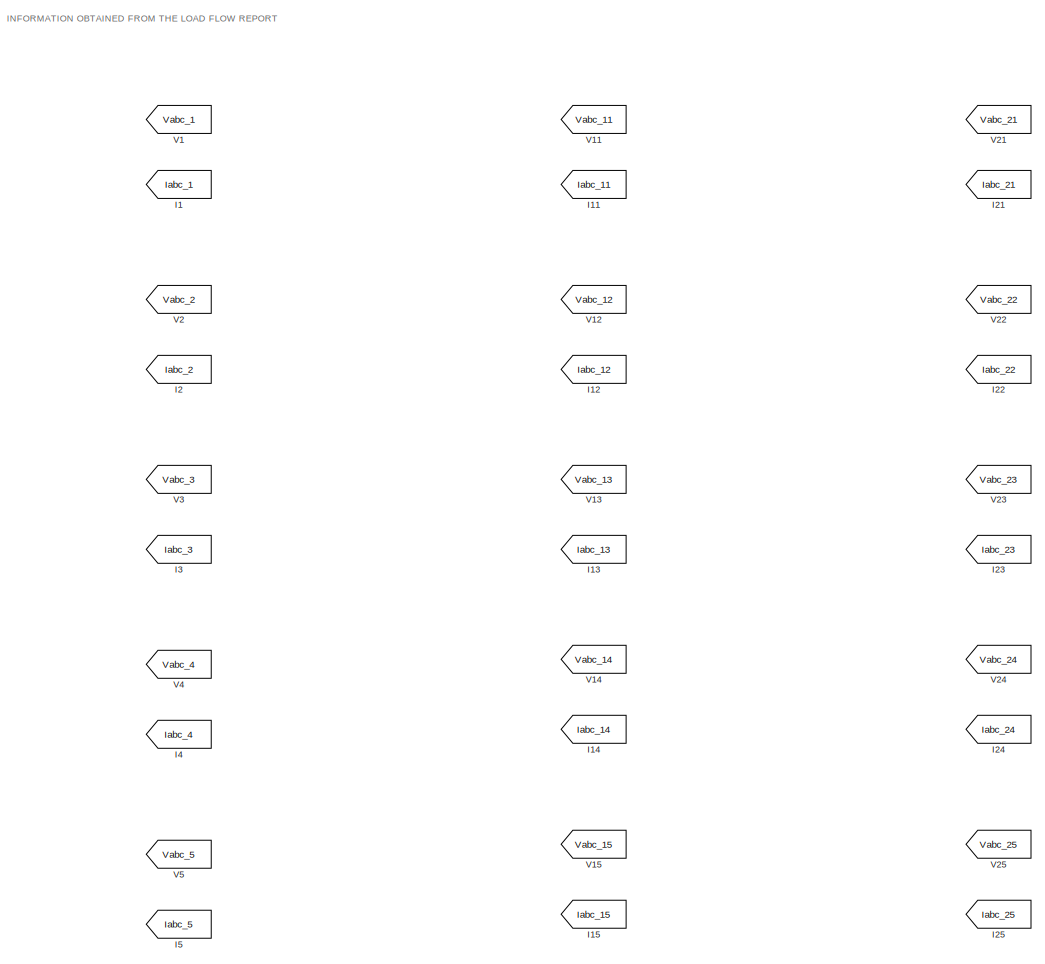
[diagram: Power-Flow - part 1/2, full width, top band]
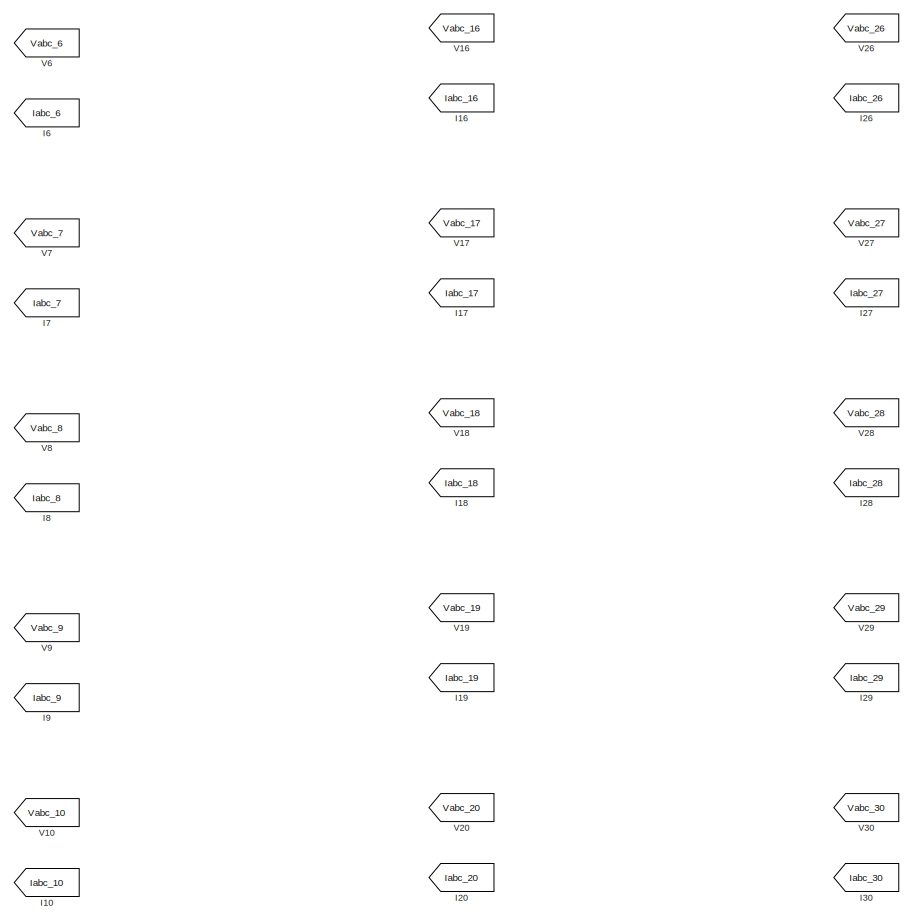
[diagram: Power-Flow - part 2/2, full width, bottom band]
BLOCK [SubSystem] Power-Flow
  Ports = []
  RequestExecContextInheritance = off
BLOCK [From] Power-Flow/I1
  GotoTag = Iabc_1
  TagVisibility = global
BLOCK [From] Power-Flow/I10
  GotoTag = Iabc_10
  TagVisibility = global
BLOCK [From] Power-Flow/I11
  GotoTag = Iabc_11
  TagVisibility = global
BLOCK [From] Power-Flow/I12
  GotoTag = Iabc_12
  TagVisibility = global
BLOCK [From] Power-Flow/I13
  GotoTag = Iabc_13
  TagVisibility = global
BLOCK [From] Power-Flow/I14
  GotoTag = Iabc_14
  TagVisibility = global
BLOCK [From] Power-Flow/I15
  GotoTag = Iabc_15
  TagVisibility = global
BLOCK [From] Power-Flow/I16
  GotoTag = Iabc_16
  TagVisibility = global
BLOCK [From] Power-Flow/I17
  GotoTag = Iabc_17
  TagVisibility = global
BLOCK [From] Power-Flow/I18
  GotoTag = Iabc_18
  TagVisibility = global
BLOCK [From] Power-Flow/I19
  GotoTag = Iabc_19
  TagVisibility = global
BLOCK [From] Power-Flow/I2
  GotoTag = Iabc_2
  TagVisibility = global
BLOCK [From] Power-Flow/I20
  GotoTag = Iabc_20
  TagVisibility = global
BLOCK [From] Power-Flow/I21
  GotoTag = Iabc_21
  TagVisibility = global
BLOCK [From] Power-Flow/I22
  GotoTag = Iabc_22
  TagVisibility = global
BLOCK [From] Power-Flow/I23
  GotoTag = Iabc_23
  TagVisibility = global
BLOCK [From] Power-Flow/I24
  GotoTag = Iabc_24
  TagVisibility = global
BLOCK [From] Power-Flow/I25
  GotoTag = Iabc_25
  TagVisibility = global
BLOCK [From] Power-Flow/I26
  GotoTag = Iabc_26
  TagVisibility = global
BLOCK [From] Power-Flow/I27
  GotoTag = Iabc_27
BLOCK [From] Power-Flow/I28
  GotoTag = Iabc_28
  TagVisibility = global
BLOCK [From] Power-Flow/I29
  GotoTag = Iabc_29
  TagVisibility = global
BLOCK [From] Power-Flow/I3
  GotoTag = Iabc_3
  TagVisibility = global
BLOCK [From] Power-Flow/I30
  GotoTag = Iabc_30
  TagVisibility = global
BLOCK [From] Power-Flow/I4
  GotoTag = Iabc_4
  TagVisibility = global
BLOCK [From] Power-Flow/I5
  GotoTag = Iabc_5
  TagVisibility = global
BLOCK [From] Power-Flow/I6
  GotoTag = Iabc_6
  TagVisibility = global
BLOCK [From] Power-Flow/I7
  GotoTag = Iabc_7
  TagVisibility = global
BLOCK [From] Power-Flow/I8
  GotoTag = Iabc_8
  TagVisibility = global
BLOCK [From] Power-Flow/I9
  GotoTag = Iabc_9
  TagVisibility = global
BLOCK [From] Power-Flow/V1
  GotoTag = Vabc_1
  TagVisibility = global
BLOCK [From] Power-Flow/V10
  GotoTag = Vabc_10
  TagVisibility = global
BLOCK [From] Power-Flow/V11
  GotoTag = Vabc_11
  TagVisibility = global
BLOCK [From] Power-Flow/V12
  GotoTag = Vabc_12
  TagVisibility = global
BLOCK [From] Power-Flow/V13
  GotoTag = Vabc_13
  TagVisibility = global
BLOCK [From] Power-Flow/V14
  GotoTag = Vabc_14
  TagVisibility = global
BLOCK [From] Power-Flow/V15
  GotoTag = Vabc_15
  TagVisibility = global
BLOCK [From] Power-Flow/V16
  GotoTag = Vabc_16
  TagVisibility = global
BLOCK [From] Power-Flow/V17
  GotoTag = Vabc_17
  TagVisibility = global
BLOCK [From] Power-Flow/V18
  GotoTag = Vabc_18
  TagVisibility = global
BLOCK [From] Power-Flow/V19
  GotoTag = Vabc_19
  TagVisibility = global
BLOCK [From] Power-Flow/V2
  GotoTag = Vabc_2
  TagVisibility = global
BLOCK [From] Power-Flow/V20
  GotoTag = Vabc_20
  TagVisibility = global
BLOCK [From] Power-Flow/V21
  GotoTag = Vabc_21
  TagVisibility = global
BLOCK [From] Power-Flow/V22
  GotoTag = Vabc_22
  TagVisibility = global
BLOCK [From] Power-Flow/V23
  GotoTag = Vabc_23
  TagVisibility = global
BLOCK [From] Power-Flow/V24
  GotoTag = Vabc_24
  TagVisibility = global
BLOCK [From] Power-Flow/V25
  GotoTag = Vabc_25
  TagVisibility = global
BLOCK [From] Power-Flow/V26
  GotoTag = Vabc_26
  TagVisibility = global
BLOCK [From] Power-Flow/V27
  GotoTag = Vabc_27
  TagVisibility = global
BLOCK [From] Power-Flow/V28
  GotoTag = Vabc_28
  TagVisibility = global
BLOCK [From] Power-Flow/V29
  GotoTag = Vabc_29
  TagVisibility = global
BLOCK [From] Power-Flow/V3
  GotoTag = Vabc_3
  TagVisibility = global
BLOCK [From] Power-Flow/V30
  GotoTag = Vabc_30
  TagVisibility = global
BLOCK [From] Power-Flow/V4
  GotoTag = Vabc_4
  TagVisibility = global
BLOCK [From] Power-Flow/V5
  GotoTag = Vabc_5
  TagVisibility = global
BLOCK [From] Power-Flow/V6
  GotoTag = Vabc_6
  TagVisibility = global
BLOCK [From] Power-Flow/V7
  GotoTag = Vabc_7
  TagVisibility = global
BLOCK [From] Power-Flow/V8
  GotoTag = Vabc_8
  TagVisibility = global
BLOCK [From] Power-Flow/V9
  GotoTag = Vabc_9
  TagVisibility = global
BLOCK [Reference] Transformer1 132kV // 33kV  REF=spsThreePhaseTransformerTwoWindingsLib/Three-Phase
Transformer
(Two Windings)
  NameLocation = right
  Ports = [0, 0, 0, 0, 0, 3, 3]
  SourceBlock = spsThreePhaseTransformerTwoWindingsLib/Three-Phase\nTransformer\n(Two Windings)
  SourceProductBaseCode = PS
  SourceType = Three-Phase Transformer (Two Windings)
BLOCK [Reference] Transformer2 132kV // 33kV  REF=spsThreePhaseTransformerTwoWindingsLib/Three-Phase
Transformer
(Two Windings)
  NameLocation = right
  Ports = [0, 0, 0, 0, 0, 3, 3]
  SourceBlock = spsThreePhaseTransformerTwoWindingsLib/Three-Phase\nTransformer\n(Two Windings)
  SourceProductBaseCode = PS
  SourceType = Three-Phase Transformer (Two Windings)
BLOCK [Reference] Transformer3 132kV // 33kV  REF=spsThreePhaseTransformerTwoWindingsLib/Three-Phase
Transformer
(Two Windings)
  NameLocation = right
  Ports = [0, 0, 0, 0, 0, 3, 3]
  SourceBlock = spsThreePhaseTransformerTwoWindingsLib/Three-Phase\nTransformer\n(Two Windings)
  SourceProductBaseCode = PS
  SourceType = Three-Phase Transformer (Two Windings)
BLOCK [Reference] Transformer4 132kV // 33kV  REF=spsThreePhaseTransformerTwoWindingsLib/Three-Phase
Transformer
(Two Windings)
  Ports = [0, 0, 0, 0, 0, 3, 3]
  SourceBlock = spsThreePhaseTransformerTwoWindingsLib/Three-Phase\nTransformer\n(Two Windings)
  SourceProductBaseCode = PS
  SourceType = Three-Phase Transformer (Two Windings)
BLOCK [Reference] powergui  REF=spspowerguiLib/powergui
  Ports = []
  Priority = 1
  SourceBlock = spspowerguiLib/powergui
  SourceProductBaseCode = PS
  SourceType = PSB option menu block
ANNOTATION (root): IEEE 30 Node Test Feeder
ANNOTATION Power-Flow: INFORMATION OBTAINED FROM THE LOAD FLOW REPORT
PLINE 10:LConn1 -- Load10:LConn1
PLINE 10:LConn2 -- Load10:LConn2
PLINE 10:LConn3 -- Load10:LConn3
PNET net1: 10:RConn1 -- L10-17:RConn1 -- L10-20:RConn1 -- L10-21:LConn1 -- L10-22:LConn1 -- L9-10:RConn1 -- Load Flow Bus54:LConn1 -- Transformer3 132kV // 33kV:RConn1
PNET net2: 10:RConn2 -- L10-17:RConn2 -- L10-20:RConn2 -- L10-21:LConn2 -- L10-22:LConn2 -- L9-10:RConn2 -- Transformer3 132kV // 33kV:RConn2
PNET net3: 10:RConn3 -- L10-17:RConn3 -- L10-20:RConn3 -- L10-21:LConn3 -- L10-22:LConn3 -- L9-10:RConn3 -- Transformer3 132kV // 33kV:RConn3
PNET net4: 11:LConn1 -- L9-11:LConn1 -- Load Flow Bus63:LConn1
PLINE 11:LConn2 -- L9-11:LConn2
PLINE 11:LConn3 -- L9-11:LConn3
PLINE 11:RConn1 -- Gen5:RConn1
PLINE 11:RConn2 -- Gen5:RConn2
PLINE 11:RConn3 -- Gen5:RConn3
PLINE 12:LConn1 -- Load12:LConn1
PLINE 12:LConn2 -- Load12:LConn2
PLINE 12:LConn3 -- Load12:LConn3
PNET net5: 12:RConn1 -- L12-13:RConn1 -- L12-14:LConn1 -- L12-15:LConn1 -- L12-16:LConn1 -- Load Flow Bus57:LConn1 -- Transformer1 132kV // 33kV:RConn1
PNET net6: 12:RConn2 -- L12-13:RConn2 -- L12-14:LConn2 -- L12-15:LConn2 -- L12-16:LConn2 -- Transformer1 132kV // 33kV:RConn2
PNET net7: 12:RConn3 -- L12-13:RConn3 -- L12-14:LConn3 -- L12-15:LConn3 -- L12-16:LConn3 -- Transformer1 132kV // 33kV:RConn3
PNET net8: 13:LConn1 -- L12-13:LConn1 -- Load Flow Bus58:LConn1
PLINE 13:LConn2 -- L12-13:LConn2
PLINE 13:LConn3 -- L12-13:LConn3
PLINE 13:RConn1 -- Gen6:RConn1
PLINE 13:RConn2 -- Gen6:RConn2
PLINE 13:RConn3 -- Gen6:RConn3
PLINE 14:LConn1 -- Load14:LConn1
PLINE 14:LConn2 -- Load14:LConn2
PLINE 14:LConn3 -- Load14:LConn3
PNET net9: 14:RConn1 -- L12-14:RConn1 -- L14-15:LConn1 -- Load Flow Bus5:LConn1
PNET net10: 14:RConn2 -- L12-14:RConn2 -- L14-15:LConn2
PNET net11: 14:RConn3 -- L12-14:RConn3 -- L14-15:LConn3
PNET net12: 15:LConn1 -- L12-15:RConn1 -- L14-15:RConn1 -- L15-18:LConn1 -- L15-23:LConn1 -- Load Flow Bus64:LConn1
PNET net13: 15:LConn2 -- L12-15:RConn2 -- L14-15:RConn2 -- L15-18:LConn2 -- L15-23:LConn2
PNET net14: 15:LConn3 -- L12-15:RConn3 -- L14-15:RConn3 -- L15-18:LConn3 -- L15-23:LConn3
PLINE 15:RConn1 -- Load15:LConn1
PLINE 15:RConn2 -- Load15:LConn2
PLINE 15:RConn3 -- Load15:LConn3
PNET net15: 16:LConn1 -- L12-16:RConn1 -- L16-17:LConn1 -- Load Flow Bus56:LConn1
PNET net16: 16:LConn2 -- L12-16:RConn2 -- L16-17:LConn2
PNET net17: 16:LConn3 -- L12-16:RConn3 -- L16-17:LConn3
PLINE 16:RConn1 -- Load16:LConn1
PLINE 16:RConn2 -- Load16:LConn2
PLINE 16:RConn3 -- Load16:LConn3
PNET net18: 17:LConn1 -- L10-17:LConn1 -- L16-17:RConn1 -- Load Flow Bus55:LConn1
PNET net19: 17:LConn2 -- L10-17:LConn2 -- L16-17:RConn2
PNET net20: 17:LConn3 -- L10-17:LConn3 -- L16-17:RConn3
PLINE 17:RConn1 -- Load17:LConn1
PLINE 17:RConn2 -- Load17:LConn2
PLINE 17:RConn3 -- Load17:LConn3
PLINE 18:LConn1 -- Load18:LConn1
PLINE 18:LConn2 -- Load18:LConn2
PLINE 18:LConn3 -- Load18:LConn3
PNET net21: 18:RConn1 -- L15-18:RConn1 -- L18-19:LConn1 -- Load Flow Bus2:LConn1
PNET net22: 18:RConn2 -- L15-18:RConn2 -- L18-19:LConn2
PNET net23: 18:RConn3 -- L15-18:RConn3 -- L18-19:LConn3
PLINE 19:LConn1 -- Load19:LConn1
PLINE 19:LConn2 -- Load19:LConn2
PLINE 19:LConn3 -- Load19:LConn3
PNET net24: 19:RConn1 -- L18-19:RConn1 -- L19-20:RConn1 -- Load Flow Bus7:LConn1
PNET net25: 19:RConn2 -- L18-19:RConn2 -- L19-20:RConn2
PNET net26: 19:RConn3 -- L18-19:RConn3 -- L19-20:RConn3
PNET net27: 1:LConn1 -- L1-2:RConn1 -- L1-3:LConn1
PNET net28: 1:LConn2 -- L1-2:RConn2 -- L1-3:LConn2
PNET net29: 1:LConn3 -- L1-2:RConn3 -- L1-3:LConn3
PNET net30: 1:RConn1 -- Gen1:RConn1 -- Load Flow Bus28:LConn1
PLINE 1:RConn2 -- Gen1:RConn2
PLINE 1:RConn3 -- Gen1:RConn3
PNET net31: 20:LConn1 -- L10-20:LConn1 -- L19-20:LConn1 -- Load Flow Bus62:LConn1
PNET net32: 20:LConn2 -- L10-20:LConn2 -- L19-20:LConn2
PNET net33: 20:LConn3 -- L10-20:LConn3 -- L19-20:LConn3
PLINE 20:RConn1 -- Load20:LConn1
PLINE 20:RConn2 -- Load20:LConn2
PLINE 20:RConn3 -- Load20:LConn3
PLINE 21:LConn1 -- Load21:LConn1
PLINE 21:LConn2 -- Load21:LConn2
PLINE 21:LConn3 -- Load21:LConn3
PNET net34: 21:RConn1 -- L10-21:RConn1 -- L21-22:LConn1 -- Load Flow Bus6:LConn1
PNET net35: 21:RConn2 -- L10-21:RConn2 -- L21-22:LConn2
PNET net36: 21:RConn3 -- L10-21:RConn3 -- L21-22:LConn3
PLINE 22:LConn1 -- L22-24:RConn1
PLINE 22:LConn2 -- L22-24:RConn2
PLINE 22:LConn3 -- L22-24:RConn3
PNET net37: 22:RConn1 -- L10-22:RConn1 -- L21-22:RConn1 -- Load Flow Bus13:LConn1
PNET net38: 22:RConn2 -- L10-22:RConn2 -- L21-22:RConn2
PNET net39: 22:RConn3 -- L10-22:RConn3 -- L21-22:RConn3
PNET net40: 23:LConn1 -- L15-23:RConn1 -- L23-24:LConn1 -- Load Flow Bus52:LConn1
PNET net41: 23:LConn2 -- L15-23:RConn2 -- L23-24:LConn2
PNET net42: 23:LConn3 -- L15-23:RConn3 -- L23-24:LConn3
PLINE 23:RConn1 -- Load23:LConn1
PLINE 23:RConn2 -- Load23:LConn2
PLINE 23:RConn3 -- Load23:LConn3
PNET net43: 24:LConn1 -- Load Flow Bus9:LConn1 -- Load24:LConn1
PLINE 24:LConn2 -- Load24:LConn2
PLINE 24:LConn3 -- Load24:LConn3
PNET net44: 24:RConn1 -- L22-24:LConn1 -- L23-24:RConn1 -- L24-25:LConn1
PNET net45: 24:RConn2 -- L22-24:LConn2 -- L23-24:RConn2 -- L24-25:LConn2
PNET net46: 24:RConn3 -- L22-24:LConn3 -- L23-24:RConn3 -- L24-25:LConn3
PNET net47: 25:LConn1 -- L25-27:LConn1 -- Load Flow Bus10:LConn1
PLINE 25:LConn2 -- L25-27:LConn2
PLINE 25:LConn3 -- L25-27:LConn3
PNET net48: 25:RConn1 -- L24-25:RConn1 -- L25-26:LConn1
PNET net49: 25:RConn2 -- L24-25:RConn2 -- L25-26:LConn2
PNET net50: 25:RConn3 -- L24-25:RConn3 -- L25-26:LConn3
PLINE 26:LConn1 -- Load26:LConn1
PLINE 26:LConn2 -- Load26:LConn2
PLINE 26:LConn3 -- Load26:LConn3
PNET net51: 26:RConn1 -- L25-26:RConn1 -- Load Flow Bus8:LConn1
PLINE 26:RConn2 -- L25-26:RConn2
PLINE 26:RConn3 -- L25-26:RConn3
PNET net52: 27:RConn1 -- L25-27:RConn1 -- L27-29:RConn1 -- L27-30:RConn1 -- Load Flow Bus46:LConn1 -- Transformer4 132kV // 33kV:RConn1
PNET net53: 27:RConn2 -- L25-27:RConn2 -- L27-29:RConn2 -- L27-30:RConn2 -- Transformer4 132kV // 33kV:RConn2
PNET net54: 27:RConn3 -- L25-27:RConn3 -- L27-29:RConn3 -- L27-30:RConn3 -- Transformer4 132kV // 33kV:RConn3
PNET net55: 28:LConn1 -- Load Flow Bus45:LConn1 -- Transformer4 132kV // 33kV:LConn1
PLINE 28:LConn2 -- Transformer4 132kV // 33kV:LConn2
PLINE 28:LConn3 -- Transformer4 132kV // 33kV:LConn3
PNET net56: 28:RConn1 -- L6-28:RConn1 -- L8-28:RConn1
PNET net57: 28:RConn2 -- L6-28:RConn2 -- L8-28:RConn2
PNET net58: 28:RConn3 -- L6-28:RConn3 -- L8-28:RConn3
PLINE 29:LConn1 -- Load29:LConn1
PLINE 29:LConn2 -- Load29:LConn2
PLINE 29:LConn3 -- Load29:LConn3
PNET net59: 29:RConn1 -- L27-29:LConn1 -- L29-30:RConn1 -- Load Flow Bus11:LConn1
PNET net60: 29:RConn2 -- L27-29:LConn2 -- L29-30:RConn2
PNET net61: 29:RConn3 -- L27-29:LConn3 -- L29-30:RConn3
PNET net62: 2:LConn1 -- L1-2:LConn1 -- L2-4:LConn1 -- L2-5:LConn1 -- L2-6:LConn1
PNET net63: 2:LConn2 -- L1-2:LConn2 -- L2-4:LConn2 -- L2-5:LConn2 -- L2-6:LConn2
PNET net64: 2:LConn3 -- L1-2:LConn3 -- L2-4:LConn3 -- L2-5:LConn3 -- L2-6:LConn3
PNET net65: 2:RConn1 -- Gen2:RConn1 -- Load Flow Bus37:LConn1 -- Load2:LConn1
PNET net66: 2:RConn2 -- Gen2:RConn2 -- Load2:LConn2
PNET net67: 2:RConn3 -- Gen2:RConn3 -- Load2:LConn3
PLINE 30:LConn1 -- Load30:LConn1
PLINE 30:LConn2 -- Load30:LConn2
PLINE 30:LConn3 -- Load30:LConn3
PNET net68: 30:RConn1 -- L27-30:LConn1 -- L29-30:LConn1 -- Load Flow Bus12:LConn1
PNET net69: 30:RConn2 -- L27-30:LConn2 -- L29-30:LConn2
PNET net70: 30:RConn3 -- L27-30:LConn3 -- L29-30:LConn3
PLINE 3:LConn1 -- Load3:LConn1
PLINE 3:LConn2 -- Load3:LConn2
PLINE 3:LConn3 -- Load3:LConn3
PNET net71: 3:RConn1 -- L1-3:RConn1 -- L3-4:LConn1 -- Load Flow Bus4:LConn1
PNET net72: 3:RConn2 -- L1-3:RConn2 -- L3-4:LConn2
PNET net73: 3:RConn3 -- L1-3:RConn3 -- L3-4:LConn3
PLINE 4:LConn1 -- Load4:LConn1
PLINE 4:LConn2 -- Load4:LConn2
PLINE 4:LConn3 -- Load4:LConn3
PNET net74: 4:RConn1 -- L2-4:RConn1 -- L3-4:RConn1 -- L4-6:LConn1 -- Load Flow Bus3:LConn1 -- Transformer1 132kV // 33kV:LConn1
PNET net75: 4:RConn2 -- L2-4:RConn2 -- L3-4:RConn2 -- L4-6:LConn2 -- Transformer1 132kV // 33kV:LConn2
PNET net76: 4:RConn3 -- L2-4:RConn3 -- L3-4:RConn3 -- L4-6:LConn3 -- Transformer1 132kV // 33kV:LConn3
PNET net77: 5:LConn1 -- L2-5:RConn1 -- L5-7:LConn1 -- Load Flow Bus1:LConn1
PNET net78: 5:LConn2 -- L2-5:RConn2 -- L5-7:LConn2
PNET net79: 5:LConn3 -- L2-5:RConn3 -- L5-7:LConn3
PNET net80: 5:RConn1 -- Gen3:RConn1 -- Load5:LConn1
PNET net81: 5:RConn2 -- Gen3:RConn2 -- Load5:LConn2
PNET net82: 5:RConn3 -- Gen3:RConn3 -- Load5:LConn3
PNET net83: 6:LConn1 -- L6-28:LConn1 -- Transformer2 132kV // 33kV:LConn1 -- Transformer3 132kV // 33kV:LConn1
PNET net84: 6:LConn2 -- L6-28:LConn2 -- Transformer2 132kV // 33kV:LConn2 -- Transformer3 132kV // 33kV:LConn2
PNET net85: 6:LConn3 -- L6-28:LConn3 -- Transformer2 132kV // 33kV:LConn3 -- Transformer3 132kV // 33kV:LConn3
PNET net86: 6:RConn1 -- L2-6:RConn1 -- L4-6:RConn1 -- L6-7:RConn1 -- L6-8:LConn1 -- Load Flow Bus43:LConn1
PNET net87: 6:RConn2 -- L2-6:RConn2 -- L4-6:RConn2 -- L6-7:RConn2 -- L6-8:LConn2
PNET net88: 6:RConn3 -- L2-6:RConn3 -- L4-6:RConn3 -- L6-7:RConn3 -- L6-8:LConn3
PNET net89: 7:LConn1 -- L5-7:RConn1 -- L6-7:LConn1 -- Load Flow Bus42:LConn1
PNET net90: 7:LConn2 -- L5-7:RConn2 -- L6-7:LConn2
PNET net91: 7:LConn3 -- L5-7:RConn3 -- L6-7:LConn3
PLINE 7:RConn1 -- Load7:LConn1
PLINE 7:RConn2 -- Load7:LConn2
PLINE 7:RConn3 -- Load7:LConn3
PNET net92: 8:LConn1 -- Gen4:RConn1 -- Load8:LConn1
PNET net93: 8:LConn2 -- Gen4:RConn2 -- Load8:LConn2
PNET net94: 8:LConn3 -- Gen4:RConn3 -- Load8:LConn3
PNET net95: 8:RConn1 -- L6-8:RConn1 -- L8-28:LConn1 -- Load Flow Bus44:LConn1
PNET net96: 8:RConn2 -- L6-8:RConn2 -- L8-28:LConn2
PNET net97: 8:RConn3 -- L6-8:RConn3 -- L8-28:LConn3
PNET net98: 9:LConn1 -- L9-10:LConn1 -- Load Flow Bus53:LConn1 -- Transformer2 132kV // 33kV:RConn1
PNET net99: 9:LConn2 -- L9-10:LConn2 -- Transformer2 132kV // 33kV:RConn2
PNET net100: 9:LConn3 -- L9-10:LConn3 -- Transformer2 132kV // 33kV:RConn3
PLINE 9:RConn1 -- L9-11:RConn1
PLINE 9:RConn2 -- L9-11:RConn2
PLINE 9:RConn3 -- L9-11:RConn3
note: PNET lines group multi-terminal physical nets as a canonical sorted terminal list (undirected conserving connections); 2-terminal nets keep the pairwise PLINE form
